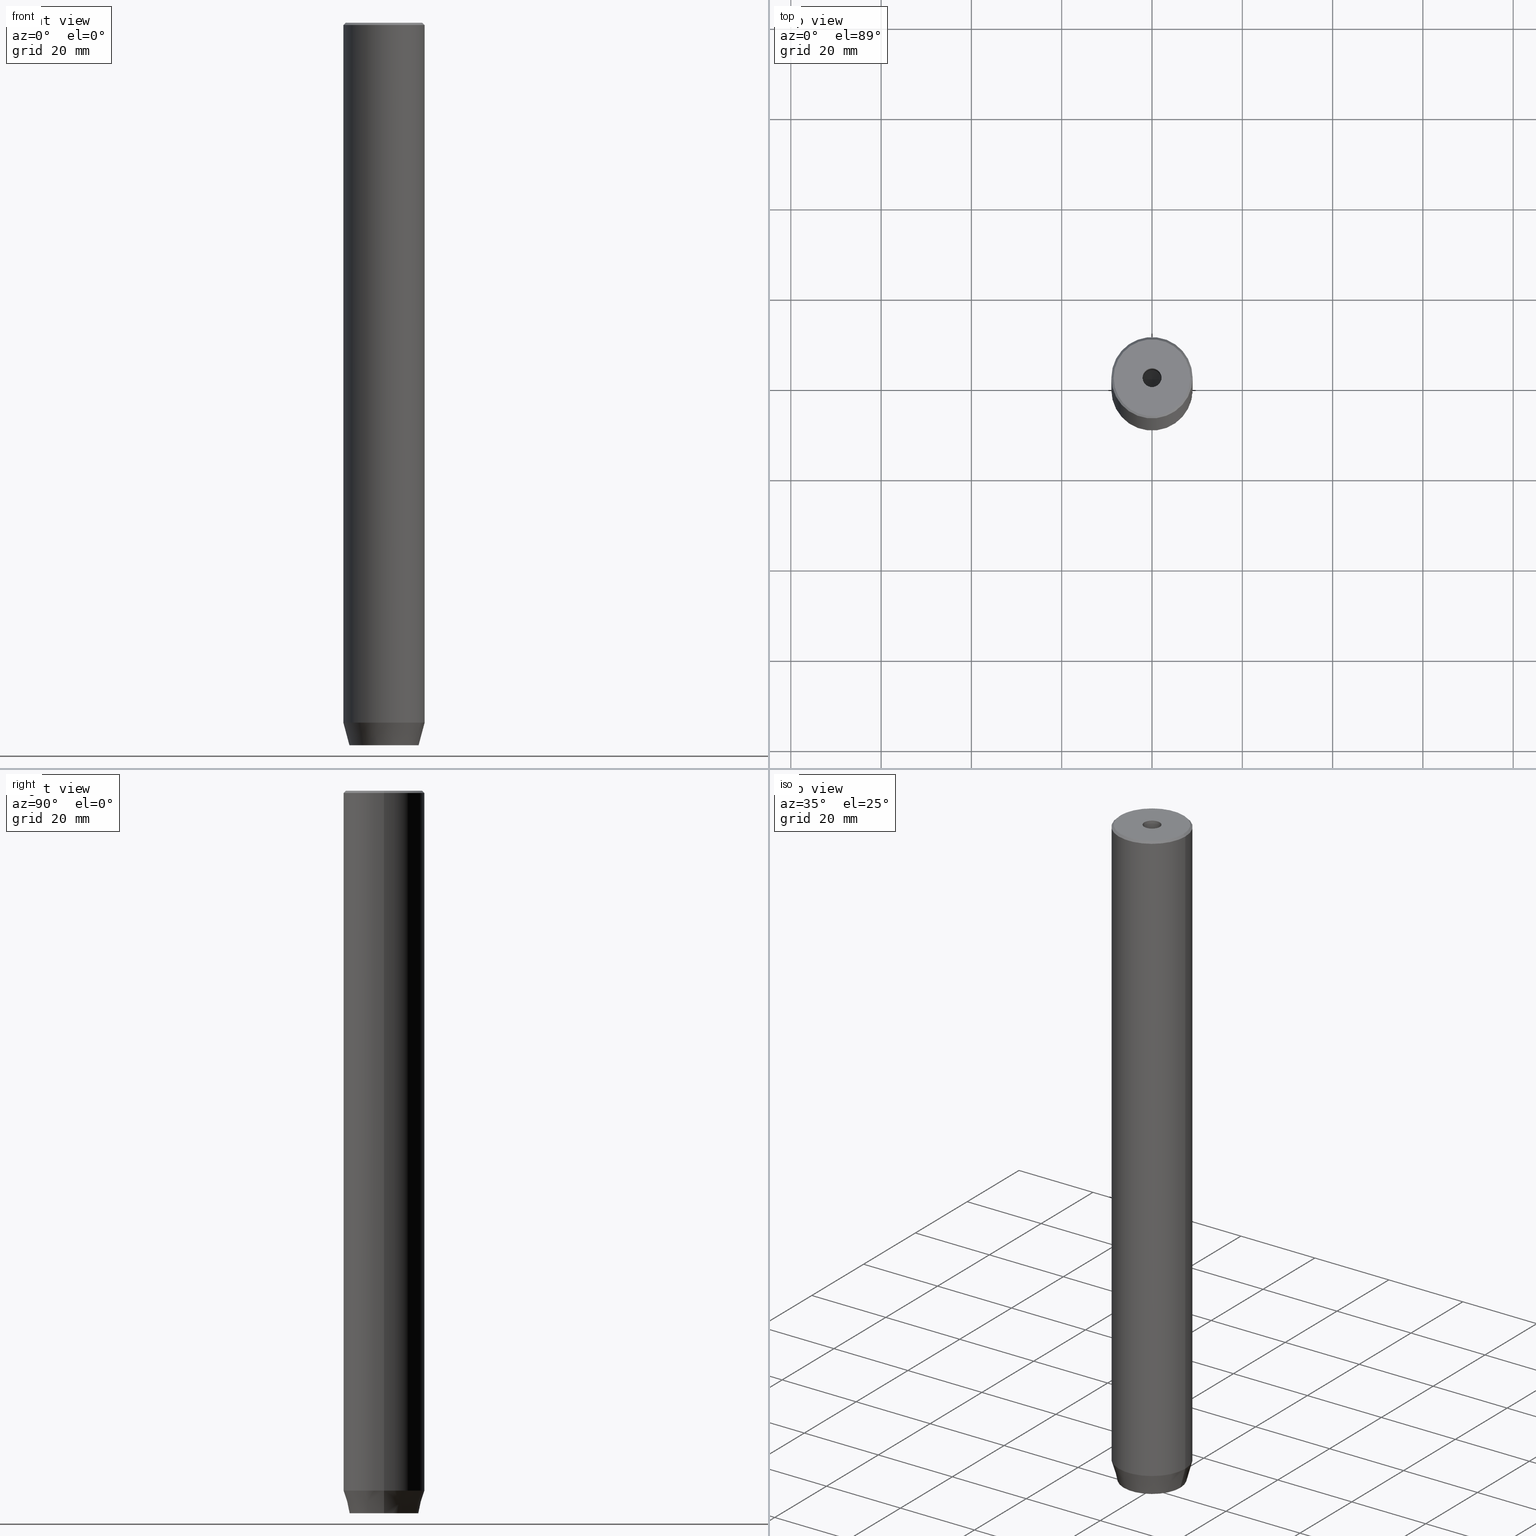
[diagram: canonical four-view strip — front | top / right | iso, engineering-drawing reading convention]
A machine part, canonical four-view strip (front | top / right | iso — engineering-drawing reading convention). The complete STEP part file that produces these views, byte-faithful:
ISO-10303-21;
HEADER;
FILE_DESCRIPTION (( 'STEP AP203' ),
    '1' );
FILE_NAME ('5ced.STEP',
    '2024-01-02T20:35:45',
    ( '' ),
    ( '' ),
    'SwSTEP 2.0',
    'SolidWorks 2019',
    '' );
FILE_SCHEMA (( 'CONFIG_CONTROL_DESIGN' ));
ENDSEC;

DATA;
#1 = APPLICATION_PROTOCOL_DEFINITION ( 'international standard', 'config_control_design', 1994, #15 ) ;
#2 = CARTESIAN_POINT ( 'NONE',  ( 9.000000000000000000, 0.000000000000000000, -0.5000000000000229816 ) ) ;
#3 = EDGE_CURVE ( 'NONE', #170, #261, #178, .T. ) ;
#4 = CARTESIAN_POINT ( 'NONE',  ( 9.000000000000000000, 0.000000000000000000, 0.000000000000000000 ) ) ;
#5 = LINE ( 'NONE', #549, #475 ) ;
#6 = EDGE_CURVE ( 'NONE', #40, #492, #132, .T. ) ;
#7 = AXIS2_PLACEMENT_3D ( 'NONE', #515, #420, #231 ) ;
#8 =( NAMED_UNIT ( * ) PLANE_ANGLE_UNIT ( ) SI_UNIT ( $, .RADIAN. ) );
#9 = DIRECTION ( 'NONE',  ( 1.000000000000000000, 0.000000000000000000, 0.000000000000000000 ) ) ;
#10 = VECTOR ( 'NONE', #315, 1000.000000000000000 ) ;
#11 = DATE_AND_TIME ( #560, #124 ) ;
#12 = AXIS2_PLACEMENT_3D ( 'NONE', #505, #93, #91 ) ;
#13 = DIRECTION ( 'NONE',  ( -0.000000000000000000, -0.000000000000000000, 1.000000000000000000 ) ) ;
#14 = EDGE_CURVE ( 'NONE', #401, #399, #453, .T. ) ;
#15 = APPLICATION_CONTEXT ( 'configuration controlled 3d designs of mechanical parts and assemblies' ) ;
#16 = CALENDAR_DATE ( 2024, 2, 1 ) ;
#17 = ADVANCED_BREP_SHAPE_REPRESENTATION ( '5ced', ( #72, #12 ), #418 ) ;
#18 = DIRECTION ( 'NONE',  ( 1.000000000000000000, 0.000000000000000000, 0.000000000000000000 ) ) ;
#19 = EDGE_CURVE ( 'NONE', #66, #110, #54, .T. ) ;
#20 = ORIENTED_EDGE ( 'NONE', *, *, #458, .T. ) ;
#21 = DIRECTION ( 'NONE',  ( -0.8660254037844385966, 0.5000000000000001110, 0.000000000000000000 ) ) ;
#22 = VECTOR ( 'NONE', #423, 1000.000000000000000 ) ;
#23 = ORIENTED_EDGE ( 'NONE', *, *, #504, .F. ) ;
#24 = AXIS2_PLACEMENT_3D ( 'NONE', #84, #361, #31 ) ;
#25 = CARTESIAN_POINT ( 'NONE',  ( -9.000000000000000000, 1.102182119232617714E-15, -154.9999999999999716 ) ) ;
#26 = ORIENTED_EDGE ( 'NONE', *, *, #583, .F. ) ;
#27 = EDGE_CURVE ( 'NONE', #77, #346, #327, .T. ) ;
#28 = CALENDAR_DATE ( 2024, 2, 1 ) ;
#29 = DIRECTION ( 'NONE',  ( 0.000000000000000000, -0.000000000000000000, 1.000000000000000000 ) ) ;
#30 = VERTEX_POINT ( 'NONE', #149 ) ;
#31 = DIRECTION ( 'NONE',  ( 1.000000000000000000, 0.000000000000000000, 0.000000000000000000 ) ) ;
#32 = ORIENTED_EDGE ( 'NONE', *, *, #519, .F. ) ;
#33 = CIRCLE ( 'NONE', #529, 2.099999999999996092 ) ;
#34 = DIRECTION ( 'NONE',  ( -0.000000000000000000, -0.000000000000000000, 1.000000000000000000 ) ) ;
#35 = EDGE_CURVE ( 'NONE', #212, #77, #193, .T. ) ;
#36 = VERTEX_POINT ( 'NONE', #187 ) ;
#37 = CARTESIAN_POINT ( 'NONE',  ( 0.000000000000000000, 0.000000000000000000, -0.5000000000000229816 ) ) ;
#38 = EDGE_LOOP ( 'NONE', ( #436, #554, #448 ) ) ;
#39 = CYLINDRICAL_SURFACE ( 'NONE', #348, 2.099999999999997424 ) ;
#40 = VERTEX_POINT ( 'NONE', #106 ) ;
#41 = EDGE_CURVE ( 'NONE', #577, #163, #454, .T. ) ;
#42 = DIRECTION ( 'NONE',  ( -1.000000000000000000, 0.000000000000000000, -0.000000000000000000 ) ) ;
#43 = CONICAL_SURFACE ( 'NONE', #397, 8.499999999999966249, 0.7853981633974587151 ) ;
#44 = CARTESIAN_POINT ( 'NONE',  ( -3.000000000000000888, 1.732050807568876527, -157.2000000000000171 ) ) ;
#45 = DIRECTION ( 'NONE',  ( 1.000000000000000000, 0.000000000000000000, 0.000000000000000000 ) ) ;
#46 = DIRECTION ( 'NONE',  ( 1.000000000000000000, 0.000000000000000000, 0.000000000000000000 ) ) ;
#47 = MECHANICAL_CONTEXT ( 'NONE', #444, 'mechanical' ) ;
#48 = DIRECTION ( 'NONE',  ( -0.000000000000000000, -0.000000000000000000, 1.000000000000000000 ) ) ;
#49 = CARTESIAN_POINT ( 'NONE',  ( -7.660254037844373087, 1.020146339021393680E-15, -160.0000000000000000 ) ) ;
#50 = CARTESIAN_POINT ( 'NONE',  ( 0.000000000000000000, 0.000000000000000000, -154.9999999999999716 ) ) ;
#51 = AXIS2_PLACEMENT_3D ( 'NONE', #55, #459, #545 ) ;
#52 = ADVANCED_FACE ( 'NONE', ( #238 ), #86, .T. ) ;
#53 = CARTESIAN_POINT ( 'NONE',  ( 2.099999999999996092, 0.000000000000000000, -20.00000000000000000 ) ) ;
#54 = LINE ( 'NONE', #331, #578 ) ;
#55 = CARTESIAN_POINT ( 'NONE',  ( 0.000000000000000000, 0.000000000000000000, -160.0000000000000000 ) ) ;
#56 = CARTESIAN_POINT ( 'NONE',  ( 0.000000000000000000, 0.000000000000000000, -1.990051048614449116E-16 ) ) ;
#57 = VECTOR ( 'NONE', #83, 1000.000000000000000 ) ;
#58 = FACE_OUTER_BOUND ( 'NONE', #216, .T. ) ;
#59 = VECTOR ( 'NONE', #567, 1000.000000000000000 ) ;
#60 = LINE ( 'NONE', #384, #179 ) ;
#61 = ORIENTED_EDGE ( 'NONE', *, *, #224, .T. ) ;
#62 = FACE_OUTER_BOUND ( 'NONE', #533, .T. ) ;
#63 = EDGE_LOOP ( 'NONE', ( #339, #121, #20, #429 ) ) ;
#64 = PERSON_AND_ORGANIZATION ( #285, #437 ) ;
#65 = CARTESIAN_POINT ( 'NONE',  ( 0.000000000000000000, 7.660254037844373087, -160.0000000000000000 ) ) ;
#66 = VERTEX_POINT ( 'NONE', #197 ) ;
#67 = ADVANCED_FACE ( 'NONE', ( #463 ), #367, .F. ) ;
#68 = AXIS2_PLACEMENT_3D ( 'NONE', #260, #573, #175 ) ;
#69 = PERSON_AND_ORGANIZATION_ROLE ( 'design_supplier' ) ;
#70 = DIRECTION ( 'NONE',  ( -0.000000000000000000, -0.000000000000000000, 1.000000000000000000 ) ) ;
#71 = VERTEX_POINT ( 'NONE', #291 ) ;
#72 = MANIFOLD_SOLID_BREP ( 'Vrt�k z�vitn�ku pro M5 z�vit1', #251 ) ;
#73 = DIRECTION ( 'NONE',  ( 1.000000000000000000, 0.000000000000000000, 0.000000000000000000 ) ) ;
#74 = ORIENTED_EDGE ( 'NONE', *, *, #275, .T. ) ;
#75 = EDGE_CURVE ( 'NONE', #66, #117, #5, .T. ) ;
#76 = DIRECTION ( 'NONE',  ( -0.000000000000000000, -0.000000000000000000, 1.000000000000000000 ) ) ;
#77 = VERTEX_POINT ( 'NONE', #412 ) ;
#78 = VECTOR ( 'NONE', #143, 1000.000000000000000 ) ;
#79 = DIRECTION ( 'NONE',  ( 0.000000000000000000, 0.000000000000000000, -1.000000000000000000 ) ) ;
#80 = ORIENTED_EDGE ( 'NONE', *, *, #180, .T. ) ;
#81 = SECURITY_CLASSIFICATION ( '', '', #114 ) ;
#82 = LINE ( 'NONE', #268, #89 ) ;
#83 = DIRECTION ( 'NONE',  ( 0.000000000000000000, -1.000000000000000000, 0.000000000000000000 ) ) ;
#84 = CARTESIAN_POINT ( 'NONE',  ( 0.000000000000000000, 0.000000000000000000, 0.000000000000000000 ) ) ;
#85 = ORIENTED_EDGE ( 'NONE', *, *, #292, .T. ) ;
#86 = CONICAL_SURFACE ( 'NONE', #508, 9.000000000000000000, 0.2617993877991501295 ) ;
#87 = CIRCLE ( 'NONE', #425, 9.000000000000000000 ) ;
#88 = LINE ( 'NONE', #468, #338 ) ;
#89 = VECTOR ( 'NONE', #408, 1000.000000000000000 ) ;
#90 = ORIENTED_EDGE ( 'NONE', *, *, #504, .T. ) ;
#91 = DIRECTION ( 'NONE',  ( 1.000000000000000000, 0.000000000000000000, 0.000000000000000000 ) ) ;
#92 = CARTESIAN_POINT ( 'NONE',  ( 0.000000000000000000, 0.000000000000000000, -154.9999999999999716 ) ) ;
#93 = DIRECTION ( 'NONE',  ( 0.000000000000000000, 0.000000000000000000, 1.000000000000000000 ) ) ;
#94 = EDGE_CURVE ( 'NONE', #163, #128, #95, .T. ) ;
#95 = LINE ( 'NONE', #512, #194 ) ;
#96 = AXIS2_PLACEMENT_3D ( 'NONE', #506, #242, #46 ) ;
#97 = CARTESIAN_POINT ( 'NONE',  ( 9.000000000000000000, 0.000000000000000000, -154.9999999999999716 ) ) ;
#98 = CC_DESIGN_PERSON_AND_ORGANIZATION_ASSIGNMENT ( #514, #69, ( #449 ) ) ;
#99 = PLANE ( 'NONE',  #503 ) ;
#100 = CONICAL_SURFACE ( 'NONE', #150, 2.099999999999996092, 1.029744258676652091 ) ;
#101 = CYLINDRICAL_SURFACE ( 'NONE', #439, 9.000000000000000000 ) ;
#102 = DIRECTION ( 'NONE',  ( -0.000000000000000000, -0.000000000000000000, 1.000000000000000000 ) ) ;
#103 = VECTOR ( 'NONE', #461, 1000.000000000000000 ) ;
#104 = EDGE_CURVE ( 'NONE', #163, #577, #424, .T. ) ;
#105 = COORDINATED_UNIVERSAL_TIME_OFFSET ( 1, 0, .AHEAD. ) ;
#106 = CARTESIAN_POINT ( 'NONE',  ( 3.000000000000000000, 1.732050807568876527, -157.2000000000000171 ) ) ;
#107 = CC_DESIGN_PERSON_AND_ORGANIZATION_ASSIGNMENT ( #564, #343, ( #120 ) ) ;
#108 = APPROVAL_STATUS ( 'not_yet_approved' ) ;
#109 = FACE_OUTER_BOUND ( 'NONE', #297, .T. ) ;
#110 = VERTEX_POINT ( 'NONE', #543 ) ;
#111 = CARTESIAN_POINT ( 'NONE',  ( -1.499999999999999556, 2.598076211353316012, -160.0000000000000000 ) ) ;
#112 = VECTOR ( 'NONE', #501, 1000.000000000000000 ) ;
#113 = ORIENTED_EDGE ( 'NONE', *, *, #527, .F. ) ;
#114 = SECURITY_CLASSIFICATION_LEVEL ( 'unclassified' ) ;
#115 = DIRECTION ( 'NONE',  ( 0.7071067811865549002, 8.659560562355022838E-17, -0.7071067811865401342 ) ) ;
#116 = ADVANCED_FACE ( 'NONE', ( #233 ), #288, .F. ) ;
#117 = VERTEX_POINT ( 'NONE', #469 ) ;
#118 = APPROVAL_ROLE ( '' ) ;
#119 = DIRECTION ( 'NONE',  ( -1.000000000000000000, 0.000000000000000000, 0.000000000000000000 ) ) ;
#120 = PRODUCT_DEFINITION ( 'NEZN�M�', '', #449, #378 ) ;
#121 = ORIENTED_EDGE ( 'NONE', *, *, #240, .T. ) ;
#122 = VECTOR ( 'NONE', #387, 1000.000000000000000 ) ;
#123 = CARTESIAN_POINT ( 'NONE',  ( -2.099999999999997424, 2.571758278209438506E-16, 0.000000000000000000 ) ) ;
#124 = LOCAL_TIME ( 21, 35, 45.00000000000000000, #199 ) ;
#125 = VERTEX_POINT ( 'NONE', #321 ) ;
#126 = ADVANCED_FACE ( 'NONE', ( #280 ), #507, .T. ) ;
#127 = DIRECTION ( 'NONE',  ( 1.000000000000000000, 0.000000000000000000, 0.000000000000000000 ) ) ;
#128 = VERTEX_POINT ( 'NONE', #546 ) ;
#129 = CARTESIAN_POINT ( 'NONE',  ( 3.000000000000000000, 1.732050807568876527, -160.0000000000000000 ) ) ;
#130 = VERTEX_POINT ( 'NONE', #144 ) ;
#131 = FACE_OUTER_BOUND ( 'NONE', #226, .T. ) ;
#132 = LINE ( 'NONE', #498, #57 ) ;
#133 = CARTESIAN_POINT ( 'NONE',  ( 3.000000000000000000, 0.000000000000000000, -160.0000000000000000 ) ) ;
#134 = ADVANCED_FACE ( 'NONE', ( #323 ), #406, .T. ) ;
#135 = EDGE_LOOP ( 'NONE', ( #376, #528, #405, #470 ) ) ;
#136 = VERTEX_POINT ( 'NONE', #2 ) ;
#137 = PRODUCT_RELATED_PRODUCT_CATEGORY ( 'detail', '', ( #195 ) ) ;
#138 = AXIS2_PLACEMENT_3D ( 'NONE', #553, #29, #526 ) ;
#139 = APPLICATION_PROTOCOL_DEFINITION ( 'international standard', 'config_control_design', 1994, #444 ) ;
#140 = DIRECTION ( 'NONE',  ( 0.5000000000000001110, 0.8660254037844385966, -0.000000000000000000 ) ) ;
#141 = CC_DESIGN_APPROVAL ( #278, ( #120 ) ) ;
#142 = ADVANCED_FACE ( 'NONE', ( #191 ), #99, .F. ) ;
#143 = DIRECTION ( 'NONE',  ( -0.000000000000000000, -0.000000000000000000, -1.000000000000000000 ) ) ;
#144 = CARTESIAN_POINT ( 'NONE',  ( -3.000000000000000000, -1.732050807568877859, -160.0000000000000000 ) ) ;
#145 = FACE_OUTER_BOUND ( 'NONE', #135, .T. ) ;
#146 = DIRECTION ( 'NONE',  ( -0.4999999999999999445, 0.8660254037844387076, 0.000000000000000000 ) ) ;
#147 = VERTEX_POINT ( 'NONE', #510 ) ;
#148 =( NAMED_UNIT ( * ) SI_UNIT ( $, .STERADIAN. ) SOLID_ANGLE_UNIT ( ) );
#149 = CARTESIAN_POINT ( 'NONE',  ( 8.499999999999966249, 1.071565949253931955E-15, 0.000000000000000000 ) ) ;
#150 = AXIS2_PLACEMENT_3D ( 'NONE', #476, #13, #18 ) ;
#151 = LOCAL_TIME ( 21, 35, 45.00000000000000000, #155 ) ;
#152 = DIRECTION ( 'NONE',  ( -0.000000000000000000, -0.000000000000000000, -1.000000000000000000 ) ) ;
#153 = CARTESIAN_POINT ( 'NONE',  ( -2.099999999999996092, 2.571758278209436534E-16, -20.00000000000000000 ) ) ;
#154 = ORIENTED_EDGE ( 'NONE', *, *, #266, .F. ) ;
#155 = COORDINATED_UNIVERSAL_TIME_OFFSET ( 1, 0, .AHEAD. ) ;
#156 = CARTESIAN_POINT ( 'NONE',  ( 3.000000000000000000, 1.732050807568876527, -157.2000000000000171 ) ) ;
#157 = AXIS2_PLACEMENT_3D ( 'NONE', #413, #140, #552 ) ;
#158 = ORIENTED_EDGE ( 'NONE', *, *, #14, .F. ) ;
#159 = ADVANCED_FACE ( 'NONE', ( #286, #482 ), #523, .T. ) ;
#160 = APPROVAL_ROLE ( '' ) ;
#161 = APPROVAL_PERSON_ORGANIZATION ( #547, #278, #160 ) ;
#162 = LINE ( 'NONE', #341, #245 ) ;
#163 = VERTEX_POINT ( 'NONE', #427 ) ;
#164 = DATE_AND_TIME ( #252, #210 ) ;
#165 = FACE_OUTER_BOUND ( 'NONE', #38, .T. ) ;
#166 = EDGE_LOOP ( 'NONE', ( #537, #203, #173, #250 ) ) ;
#167 = AXIS2_PLACEMENT_3D ( 'NONE', #92, #48, #380 ) ;
#168 = LINE ( 'NONE', #381, #171 ) ;
#169 = EDGE_CURVE ( 'NONE', #261, #401, #211, .T. ) ;
#170 = VERTEX_POINT ( 'NONE', #474 ) ;
#171 = VECTOR ( 'NONE', #344, 999.9999999999998863 ) ;
#172 = LINE ( 'NONE', #532, #10 ) ;
#173 = ORIENTED_EDGE ( 'NONE', *, *, #35, .T. ) ;
#174 = CC_DESIGN_PERSON_AND_ORGANIZATION_ASSIGNMENT ( #464, #416, ( #195 ) ) ;
#175 = DIRECTION ( 'NONE',  ( 1.000000000000000000, 0.000000000000000000, 0.000000000000000000 ) ) ;
#176 = ORIENTED_EDGE ( 'NONE', *, *, #325, .T. ) ;
#177 = DIRECTION ( 'NONE',  ( 0.000000000000000000, 0.000000000000000000, -1.000000000000000000 ) ) ;
#178 = LINE ( 'NONE', #44, #568 ) ;
#179 = VECTOR ( 'NONE', #21, 1000.000000000000000 ) ;
#180 = EDGE_CURVE ( 'NONE', #117, #170, #391, .T. ) ;
#181 = DIRECTION ( 'NONE',  ( 1.000000000000000000, 0.000000000000000000, 0.000000000000000000 ) ) ;
#182 = EDGE_LOOP ( 'NONE', ( #272, #383, #490, #410 ) ) ;
#183 = CC_DESIGN_SECURITY_CLASSIFICATION ( #81, ( #449 ) ) ;
#184 = LINE ( 'NONE', #396, #550 ) ;
#185 = CC_DESIGN_DATE_AND_TIME_ASSIGNMENT ( #481, #485, ( #81 ) ) ;
#186 = EDGE_LOOP ( 'NONE', ( #23, #263 ) ) ;
#187 = CARTESIAN_POINT ( 'NONE',  ( -8.499999999999966249, 0.000000000000000000, 0.000000000000000000 ) ) ;
#188 = ADVANCED_FACE ( 'NONE', ( #62 ), #100, .F. ) ;
#189 = CIRCLE ( 'NONE', #24, 8.499999999999966249 ) ;
#190 = DIRECTION ( 'NONE',  ( -0.000000000000000000, -0.000000000000000000, 1.000000000000000000 ) ) ;
#191 = FACE_OUTER_BOUND ( 'NONE', #269, .T. ) ;
#192 = CARTESIAN_POINT ( 'NONE',  ( 1.500000000000000222, -2.598076211353315568, -157.2000000000000171 ) ) ;
#193 = LINE ( 'NONE', #586, #358 ) ;
#194 = VECTOR ( 'NONE', #102, 1000.000000000000000 ) ;
#195 = PRODUCT ( '5ced', '5ced', '', ( #47 ) ) ;
#196 = PLANE ( 'NONE',  #363 ) ;
#197 = CARTESIAN_POINT ( 'NONE',  ( -2.168404344971008868E-16, -3.464101615137754830, -157.2000000000000171 ) ) ;
#198 = AXIS2_PLACEMENT_3D ( 'NONE', #582, #76, #262 ) ;
#199 = COORDINATED_UNIVERSAL_TIME_OFFSET ( 1, 0, .AHEAD. ) ;
#200 = FACE_OUTER_BOUND ( 'NONE', #531, .T. ) ;
#201 = PERSON_AND_ORGANIZATION_ROLE ( 'classification_officer' ) ;
#202 = CARTESIAN_POINT ( 'NONE',  ( 0.000000000000000000, 0.000000000000000000, 0.000000000000000000 ) ) ;
#203 = ORIENTED_EDGE ( 'NONE', *, *, #345, .F. ) ;
#204 = EDGE_CURVE ( 'NONE', #451, #40, #486, .T. ) ;
#205 = CARTESIAN_POINT ( 'NONE',  ( 9.000000000000000000, 0.000000000000000000, -154.9999999999999716 ) ) ;
#206 = AXIS2_PLACEMENT_3D ( 'NONE', #587, #190, #369 ) ;
#207 = ORIENTED_EDGE ( 'NONE', *, *, #169, .T. ) ;
#208 = ADVANCED_FACE ( 'NONE', ( #109 ), #43, .T. ) ;
#209 = PERSON_AND_ORGANIZATION ( #285, #437 ) ;
#210 = LOCAL_TIME ( 21, 35, 45.00000000000000000, #105 ) ;
#211 = LINE ( 'NONE', #111, #467 ) ;
#212 = VERTEX_POINT ( 'NONE', #249 ) ;
#213 = APPROVAL_DATE_TIME ( #333, #312 ) ;
#214 = ADVANCED_FACE ( 'NONE', ( #165 ), #310, .F. ) ;
#215 = DIRECTION ( 'NONE',  ( 0.8660254037844385966, -0.5000000000000001110, 0.000000000000000000 ) ) ;
#216 = EDGE_LOOP ( 'NONE', ( #581, #32, #524, #542 ) ) ;
#217 = FACE_OUTER_BOUND ( 'NONE', #267, .T. ) ;
#218 = EDGE_LOOP ( 'NONE', ( #90, #176, #305, #495 ) ) ;
#219 = VECTOR ( 'NONE', #70, 1000.000000000000000 ) ;
#220 = LINE ( 'NONE', #536, #518 ) ;
#221 = ORIENTED_EDGE ( 'NONE', *, *, #488, .T. ) ;
#222 = DIRECTION ( 'NONE',  ( 0.000000000000000000, 0.000000000000000000, -1.000000000000000000 ) ) ;
#223 = ORIENTED_EDGE ( 'NONE', *, *, #462, .T. ) ;
#224 = EDGE_CURVE ( 'NONE', #170, #451, #168, .T. ) ;
#225 = DIRECTION ( 'NONE',  ( 0.8660254037844385966, 0.5000000000000001110, 0.000000000000000000 ) ) ;
#226 = EDGE_LOOP ( 'NONE', ( #239, #362, #456, #460 ) ) ;
#227 = AXIS2_PLACEMENT_3D ( 'NONE', #565, #428, #294 ) ;
#228 = DIRECTION ( 'NONE',  ( 1.000000000000000000, 0.000000000000000000, 0.000000000000000000 ) ) ;
#229 = CARTESIAN_POINT ( 'NONE',  ( 1.500000000000000222, 2.598076211353315568, -160.0000000000000000 ) ) ;
#230 = ADVANCED_FACE ( 'NONE', ( #253, #200 ), #347, .T. ) ;
#231 = DIRECTION ( 'NONE',  ( -0.000000000000000000, 0.000000000000000000, -1.000000000000000000 ) ) ;
#232 = CARTESIAN_POINT ( 'NONE',  ( 0.000000000000000000, 0.000000000000000000, 0.000000000000000000 ) ) ;
#233 = FACE_OUTER_BOUND ( 'NONE', #441, .T. ) ;
#234 = AXIS2_PLACEMENT_3D ( 'NONE', #404, #496, #228 ) ;
#235 = DIRECTION ( 'NONE',  ( -0.000000000000000000, -0.000000000000000000, 1.000000000000000000 ) ) ;
#236 = DIRECTION ( 'NONE',  ( -0.000000000000000000, -0.000000000000000000, 1.000000000000000000 ) ) ;
#237 =( LENGTH_UNIT ( ) NAMED_UNIT ( * ) SI_UNIT ( .MILLI., .METRE. ) );
#238 = FACE_OUTER_BOUND ( 'NONE', #342, .T. ) ;
#239 = ORIENTED_EDGE ( 'NONE', *, *, #527, .T. ) ;
#240 = EDGE_CURVE ( 'NONE', #259, #346, #435, .T. ) ;
#241 = LINE ( 'NONE', #374, #78 ) ;
#242 = DIRECTION ( 'NONE',  ( -0.000000000000000000, -0.000000000000000000, 1.000000000000000000 ) ) ;
#243 = CC_DESIGN_PERSON_AND_ORGANIZATION_ASSIGNMENT ( #209, #201, ( #81 ) ) ;
#244 = APPROVAL_STATUS ( 'not_yet_approved' ) ;
#245 = VECTOR ( 'NONE', #115, 1000.000000000000000 ) ;
#246 = CARTESIAN_POINT ( 'NONE',  ( -3.000000000000000888, 1.732050807568876527, -160.0000000000000000 ) ) ;
#247 = DIRECTION ( 'NONE',  ( 0.000000000000000000, 0.000000000000000000, -1.000000000000000000 ) ) ;
#248 = ORIENTED_EDGE ( 'NONE', *, *, #14, .T. ) ;
#249 = CARTESIAN_POINT ( 'NONE',  ( 2.099999999999996092, 0.000000000000000000, -20.00000000000000000 ) ) ;
#250 = ORIENTED_EDGE ( 'NONE', *, *, #27, .T. ) ;
#251 = CLOSED_SHELL ( 'NONE', ( #407, #188, #208, #134, #126, #159, #230, #575, #52, #256, #142, #555, #382, #432, #67, #116, #422, #214, #471 ) ) ;
#252 = CALENDAR_DATE ( 2024, 2, 1 ) ;
#253 = FACE_BOUND ( 'NONE', #562, .T. ) ;
#254 = VECTOR ( 'NONE', #235, 1000.000000000000000 ) ;
#255 = ORIENTED_EDGE ( 'NONE', *, *, #390, .F. ) ;
#256 = ADVANCED_FACE ( 'NONE', ( #58 ), #377, .T. ) ;
#257 = APPROVAL_DATE_TIME ( #164, #278 ) ;
#258 = CARTESIAN_POINT ( 'NONE',  ( 1.500000000000000222, 2.598076211353315568, -157.2000000000000171 ) ) ;
#259 = VERTEX_POINT ( 'NONE', #153 ) ;
#260 = CARTESIAN_POINT ( 'NONE',  ( 0.000000000000000000, 0.000000000000000000, 0.000000000000000000 ) ) ;
#261 = VERTEX_POINT ( 'NONE', #246 ) ;
#262 = DIRECTION ( 'NONE',  ( 1.000000000000000000, 0.000000000000000000, 0.000000000000000000 ) ) ;
#263 = ORIENTED_EDGE ( 'NONE', *, *, #289, .F. ) ;
#264 = AXIS2_PLACEMENT_3D ( 'NONE', #491, #450, #225 ) ;
#265 = CYLINDRICAL_SURFACE ( 'NONE', #68, 2.099999999999997424 ) ;
#266 = EDGE_CURVE ( 'NONE', #110, #130, #60, .T. ) ;
#267 = EDGE_LOOP ( 'NONE', ( #443, #26, #395, #584 ) ) ;
#268 = CARTESIAN_POINT ( 'NONE',  ( -3.000000000000000444, -7.511572993685800087E-16, -160.0000000000000000 ) ) ;
#269 = EDGE_LOOP ( 'NONE', ( #207, #574, #484, #421 ) ) ;
#270 = CC_DESIGN_PERSON_AND_ORGANIZATION_ASSIGNMENT ( #433, #525, ( #449 ) ) ;
#271 = DIRECTION ( 'NONE',  ( -0.000000000000000000, -0.000000000000000000, -1.000000000000000000 ) ) ;
#272 = ORIENTED_EDGE ( 'NONE', *, *, #393, .T. ) ;
#273 = PRODUCT_DEFINITION_SHAPE ( 'NONE', 'NONE',  #120 ) ;
#274 = VECTOR ( 'NONE', #446, 1000.000000000000000 ) ;
#275 = EDGE_CURVE ( 'NONE', #125, #577, #557, .T. ) ;
#276 = DIRECTION ( 'NONE',  ( -0.8660254037844385966, -0.5000000000000001110, 0.000000000000000000 ) ) ;
#277 = ORIENTED_EDGE ( 'NONE', *, *, #462, .F. ) ;
#278 = APPROVAL ( #244, 'NEUR�EN�' ) ;
#279 = CARTESIAN_POINT ( 'NONE',  ( 0.000000000000000000, 0.000000000000000000, 0.000000000000000000 ) ) ;
#280 = FACE_OUTER_BOUND ( 'NONE', #535, .T. ) ;
#281 = DIRECTION ( 'NONE',  ( 1.000000000000000000, 0.000000000000000000, 0.000000000000000000 ) ) ;
#282 = CARTESIAN_POINT ( 'NONE',  ( 0.000000000000000000, 0.000000000000000000, -154.9999999999999716 ) ) ;
#283 = VECTOR ( 'NONE', #334, 1000.000000000000000 ) ;
#284 = LINE ( 'NONE', #419, #103 ) ;
#285 = PERSON ( 'NEUR�EN�', 'NEUR�EN�', 'NEUR�EN�', ('NEUR�EN�'), ('NEUR�EN�'), ('NEUR�EN�') ) ;
#286 = FACE_BOUND ( 'NONE', #569, .T. ) ;
#287 = EDGE_CURVE ( 'NONE', #40, #399, #530, .T. ) ;
#288 = PLANE ( 'NONE',  #157 ) ;
#289 = EDGE_CURVE ( 'NONE', #517, #125, #293, .T. ) ;
#290 = APPROVAL_STATUS ( 'not_yet_approved' ) ;
#291 = CARTESIAN_POINT ( 'NONE',  ( 3.000000000000000000, -1.732050807568876527, -160.0000000000000000 ) ) ;
#292 = EDGE_CURVE ( 'NONE', #30, #136, #162, .T. ) ;
#293 = CIRCLE ( 'NONE', #447, 7.660254037844373087 ) ;
#294 = DIRECTION ( 'NONE',  ( 1.000000000000000000, 0.000000000000000000, 0.000000000000000000 ) ) ;
#295 = ORIENTED_EDGE ( 'NONE', *, *, #75, .T. ) ;
#296 = DIRECTION ( 'NONE',  ( 0.000000000000000000, 0.000000000000000000, -1.000000000000000000 ) ) ;
#297 = EDGE_LOOP ( 'NONE', ( #502, #85, #277, #303 ) ) ;
#298 = COORDINATED_UNIVERSAL_TIME_OFFSET ( 1, 0, .AHEAD. ) ;
#299 = LINE ( 'NONE', #25, #494 ) ;
#300 = ORIENTED_EDGE ( 'NONE', *, *, #393, .F. ) ;
#301 = CALENDAR_DATE ( 2024, 2, 1 ) ;
#302 = DIRECTION ( 'NONE',  ( 1.000000000000000000, 0.000000000000000000, 0.000000000000000000 ) ) ;
#303 = ORIENTED_EDGE ( 'NONE', *, *, #349, .F. ) ;
#304 = CARTESIAN_POINT ( 'NONE',  ( 0.000000000000000000, 0.000000000000000000, 0.000000000000000000 ) ) ;
#305 = ORIENTED_EDGE ( 'NONE', *, *, #41, .F. ) ;
#306 = FACE_OUTER_BOUND ( 'NONE', #354, .T. ) ;
#307 = ORIENTED_EDGE ( 'NONE', *, *, #398, .T. ) ;
#308 = CARTESIAN_POINT ( 'NONE',  ( 0.000000000000000000, 0.000000000000000000, -157.2000000000000171 ) ) ;
#309 = ORIENTED_EDGE ( 'NONE', *, *, #104, .F. ) ;
#310 = CONICAL_SURFACE ( 'NONE', #227, 2.099999999999996092, 1.029744258676652091 ) ;
#311 = CARTESIAN_POINT ( 'NONE',  ( -1.084202172485504434E-16, 3.464101615137754830, -157.2000000000000171 ) ) ;
#312 = APPROVAL ( #290, 'NEUR�EN�' ) ;
#313 = APPROVAL_PERSON_ORGANIZATION ( #64, #312, #473 ) ;
#314 = ORIENTED_EDGE ( 'NONE', *, *, #371, .T. ) ;
#315 = DIRECTION ( 'NONE',  ( -0.8571673007021111124, 1.049727191138617217E-16, 0.5150380749100562650 ) ) ;
#316 = ORIENTED_EDGE ( 'NONE', *, *, #519, .T. ) ;
#317 = DIRECTION ( 'NONE',  ( -0.000000000000000000, -0.000000000000000000, 1.000000000000000000 ) ) ;
#318 = ORIENTED_EDGE ( 'NONE', *, *, #539, .F. ) ;
#319 = APPROVAL ( #108, 'NEUR�EN�' ) ;
#320 = VECTOR ( 'NONE', #276, 1000.000000000000000 ) ;
#321 = CARTESIAN_POINT ( 'NONE',  ( 7.660254037844373087, 0.000000000000000000, -160.0000000000000000 ) ) ;
#322 = DIRECTION ( 'NONE',  ( 2.503857664561933362E-16, -1.000000000000000000, 0.000000000000000000 ) ) ;
#323 = FACE_OUTER_BOUND ( 'NONE', #218, .T. ) ;
#324 = LINE ( 'NONE', #192, #320 ) ;
#325 = EDGE_CURVE ( 'NONE', #517, #163, #299, .T. ) ;
#326 = DIRECTION ( 'NONE',  ( -0.8660254037844387076, -0.4999999999999999445, 0.000000000000000000 ) ) ;
#327 = CIRCLE ( 'NONE', #483, 2.099999999999998757 ) ;
#328 = AXIS2_PLACEMENT_3D ( 'NONE', #538, #541, #571 ) ;
#329 = FACE_OUTER_BOUND ( 'NONE', #388, .T. ) ;
#330 = DIRECTION ( 'NONE',  ( -0.000000000000000000, -0.000000000000000000, 1.000000000000000000 ) ) ;
#331 = CARTESIAN_POINT ( 'NONE',  ( -2.168404344971008868E-16, -3.464101615137754830, -157.2000000000000171 ) ) ;
#332 = ORIENTED_EDGE ( 'NONE', *, *, #94, .T. ) ;
#333 = DATE_AND_TIME ( #28, #389 ) ;
#334 = DIRECTION ( 'NONE',  ( 0.2588190451025214056, 0.000000000000000000, 0.9659258262890680902 ) ) ;
#335 = ORIENTED_EDGE ( 'NONE', *, *, #497, .T. ) ;
#336 = CIRCLE ( 'NONE', #51, 7.660254037844373087 ) ;
#337 = CARTESIAN_POINT ( 'NONE',  ( 0.000000000000000000, 0.000000000000000000, -160.0000000000000000 ) ) ;
#338 = VECTOR ( 'NONE', #372, 1000.000000000000000 ) ;
#339 = ORIENTED_EDGE ( 'NONE', *, *, #355, .F. ) ;
#340 = DATE_TIME_ROLE ( 'creation_date' ) ;
#341 = CARTESIAN_POINT ( 'NONE',  ( 8.499999999999966249, 1.040949779275245998E-15, 0.000000000000000000 ) ) ;
#342 = EDGE_LOOP ( 'NONE', ( #392, #385, #74, #309 ) ) ;
#343 = PERSON_AND_ORGANIZATION_ROLE ( 'creator' ) ;
#344 = DIRECTION ( 'NONE',  ( 0.8660254037844387076, 0.4999999999999999445, 0.000000000000000000 ) ) ;
#345 = EDGE_CURVE ( 'NONE', #212, #259, #457, .T. ) ;
#346 = VERTEX_POINT ( 'NONE', #442 ) ;
#347 = PLANE ( 'NONE',  #138 ) ;
#348 = AXIS2_PLACEMENT_3D ( 'NONE', #304, #34, #127 ) ;
#349 = EDGE_CURVE ( 'NONE', #36, #128, #184, .T. ) ;
#350 = CIRCLE ( 'NONE', #234, 2.099999999999998757 ) ;
#351 = ORIENTED_EDGE ( 'NONE', *, *, #458, .F. ) ;
#352 = CC_DESIGN_APPROVAL ( #319, ( #449 ) ) ;
#353 = FACE_OUTER_BOUND ( 'NONE', #166, .T. ) ;
#354 = EDGE_LOOP ( 'NONE', ( #61, #572, #365, #335, #295, #80 ) ) ;
#355 = EDGE_CURVE ( 'NONE', #259, #212, #33, .T. ) ;
#356 = CARTESIAN_POINT ( 'NONE',  ( 0.000000000000000000, 0.000000000000000000, -20.00000000000000000 ) ) ;
#357 = ORIENTED_EDGE ( 'NONE', *, *, #169, .F. ) ;
#358 = VECTOR ( 'NONE', #472, 1000.000000000000000 ) ;
#359 = FACE_OUTER_BOUND ( 'NONE', #63, .T. ) ;
#360 = DIRECTION ( 'NONE',  ( -0.000000000000000000, -0.000000000000000000, -1.000000000000000000 ) ) ;
#361 = DIRECTION ( 'NONE',  ( -0.000000000000000000, -0.000000000000000000, 1.000000000000000000 ) ) ;
#362 = ORIENTED_EDGE ( 'NONE', *, *, #19, .F. ) ;
#363 = AXIS2_PLACEMENT_3D ( 'NONE', #509, #379, #322 ) ;
#364 = DIRECTION ( 'NONE',  ( -0.7071067811865549002, 0.000000000000000000, -0.7071067811865401342 ) ) ;
#365 = ORIENTED_EDGE ( 'NONE', *, *, #6, .T. ) ;
#366 = DIRECTION ( 'NONE',  ( -0.000000000000000000, -0.000000000000000000, 1.000000000000000000 ) ) ;
#367 = PLANE ( 'NONE',  #7 ) ;
#368 = AXIS2_PLACEMENT_3D ( 'NONE', #308, #79, #42 ) ;
#369 = DIRECTION ( 'NONE',  ( 1.000000000000000000, 0.000000000000000000, 0.000000000000000000 ) ) ;
#370 = CC_DESIGN_APPROVAL ( #312, ( #81 ) ) ;
#371 = EDGE_CURVE ( 'NONE', #30, #36, #189, .T. ) ;
#372 = DIRECTION ( 'NONE',  ( -0.8660254037844385966, -0.5000000000000001110, 0.000000000000000000 ) ) ;
#373 = DIRECTION ( 'NONE',  ( -0.8660254037844385966, 0.5000000000000001110, 0.000000000000000000 ) ) ;
#374 = CARTESIAN_POINT ( 'NONE',  ( -1.084202172485504434E-16, 3.464101615137754830, -157.2000000000000171 ) ) ;
#375 = DIRECTION ( 'NONE',  ( 1.000000000000000000, 0.000000000000000000, 0.000000000000000000 ) ) ;
#376 = ORIENTED_EDGE ( 'NONE', *, *, #390, .T. ) ;
#377 = CONICAL_SURFACE ( 'NONE', #580, 8.499999999999966249, 0.7853981633974587151 ) ;
#378 = DESIGN_CONTEXT ( 'detailed design', #15, 'design' ) ;
#379 = DIRECTION ( 'NONE',  ( -1.000000000000000000, -2.503857664561933362E-16, 0.000000000000000000 ) ) ;
#380 = DIRECTION ( 'NONE',  ( 1.000000000000000000, 0.000000000000000000, 0.000000000000000000 ) ) ;
#381 = CARTESIAN_POINT ( 'NONE',  ( -1.499999999999999556, 2.598076211353316012, -157.2000000000000171 ) ) ;
#382 = ADVANCED_FACE ( 'NONE', ( #217 ), #534, .F. ) ;
#383 = ORIENTED_EDGE ( 'NONE', *, *, #414, .F. ) ;
#384 = CARTESIAN_POINT ( 'NONE',  ( -1.500000000000000666, -2.598076211353316456, -160.0000000000000000 ) ) ;
#385 = ORIENTED_EDGE ( 'NONE', *, *, #289, .T. ) ;
#386 = VECTOR ( 'NONE', #215, 1000.000000000000000 ) ;
#387 = DIRECTION ( 'NONE',  ( -0.000000000000000000, -0.000000000000000000, -1.000000000000000000 ) ) ;
#388 = EDGE_LOOP ( 'NONE', ( #403, #480, #221, #521 ) ) ;
#389 = LOCAL_TIME ( 21, 35, 45.00000000000000000, #298 ) ;
#390 = EDGE_CURVE ( 'NONE', #130, #261, #82, .T. ) ;
#391 = LINE ( 'NONE', #394, #59 ) ;
#392 = ORIENTED_EDGE ( 'NONE', *, *, #325, .F. ) ;
#393 = EDGE_CURVE ( 'NONE', #399, #71, #452, .T. ) ;
#394 = CARTESIAN_POINT ( 'NONE',  ( -3.000000000000000444, -7.511572993685800087E-16, -157.2000000000000171 ) ) ;
#395 = ORIENTED_EDGE ( 'NONE', *, *, #75, .F. ) ;
#396 = CARTESIAN_POINT ( 'NONE',  ( -8.499999999999966249, 0.000000000000000000, 0.000000000000000000 ) ) ;
#397 = AXIS2_PLACEMENT_3D ( 'NONE', #478, #296, #440 ) ;
#398 = EDGE_CURVE ( 'NONE', #147, #259, #172, .T. ) ;
#399 = VERTEX_POINT ( 'NONE', #129 ) ;
#400 = PLANE ( 'NONE',  #264 ) ;
#401 = VERTEX_POINT ( 'NONE', #493 ) ;
#402 = DIRECTION ( 'NONE',  ( 1.000000000000000000, 0.000000000000000000, 0.000000000000000000 ) ) ;
#403 = ORIENTED_EDGE ( 'NONE', *, *, #94, .F. ) ;
#404 = CARTESIAN_POINT ( 'NONE',  ( 0.000000000000000000, 0.000000000000000000, -1.990051048614449116E-16 ) ) ;
#405 = ORIENTED_EDGE ( 'NONE', *, *, #180, .F. ) ;
#406 = CONICAL_SURFACE ( 'NONE', #544, 9.000000000000000000, 0.2617993877991501295 ) ;
#407 = ADVANCED_FACE ( 'NONE', ( #359 ), #39, .F. ) ;
#408 = DIRECTION ( 'NONE',  ( -2.503857664561932376E-16, 1.000000000000000000, 0.000000000000000000 ) ) ;
#409 = LOCAL_TIME ( 21, 35, 45.00000000000000000, #426 ) ;
#410 = ORIENTED_EDGE ( 'NONE', *, *, #287, .T. ) ;
#411 = CARTESIAN_POINT ( 'NONE',  ( 3.000000000000000000, -1.732050807568876527, -157.2000000000000171 ) ) ;
#412 = CARTESIAN_POINT ( 'NONE',  ( 2.099999999999998757, 0.000000000000000000, -1.990051048614449116E-16 ) ) ;
#413 = CARTESIAN_POINT ( 'NONE',  ( 1.500000000000000222, 2.598076211353315568, -157.2000000000000171 ) ) ;
#414 = EDGE_CURVE ( 'NONE', #492, #71, #220, .T. ) ;
#415 = CIRCLE ( 'NONE', #559, 8.499999999999966249 ) ;
#416 = PERSON_AND_ORGANIZATION_ROLE ( 'design_owner' ) ;
#417 = DIRECTION ( 'NONE',  ( 1.000000000000000000, 0.000000000000000000, 0.000000000000000000 ) ) ;
#418 =( GEOMETRIC_REPRESENTATION_CONTEXT ( 3 ) GLOBAL_UNCERTAINTY_ASSIGNED_CONTEXT ( ( #445 ) ) GLOBAL_UNIT_ASSIGNED_CONTEXT ( ( #237, #8, #148 ) ) REPRESENTATION_CONTEXT ( 'NONE', 'WORKASPACE' ) );
#419 = CARTESIAN_POINT ( 'NONE',  ( -3.000000000000000000, -1.732050807568877859, -157.2000000000000171 ) ) ;
#420 = DIRECTION ( 'NONE',  ( 1.000000000000000000, 0.000000000000000000, -0.000000000000000000 ) ) ;
#421 = ORIENTED_EDGE ( 'NONE', *, *, #3, .T. ) ;
#422 = ADVANCED_FACE ( 'NONE', ( #306 ), #455, .T. ) ;
#423 = DIRECTION ( 'NONE',  ( 0.8660254037844385966, -0.5000000000000001110, 0.000000000000000000 ) ) ;
#424 = CIRCLE ( 'NONE', #167, 9.000000000000000000 ) ;
#425 = AXIS2_PLACEMENT_3D ( 'NONE', #489, #177, #73 ) ;
#426 = COORDINATED_UNIVERSAL_TIME_OFFSET ( 1, 0, .AHEAD. ) ;
#427 = CARTESIAN_POINT ( 'NONE',  ( -9.000000000000000000, 1.102182119232617714E-15, -154.9999999999999716 ) ) ;
#428 = DIRECTION ( 'NONE',  ( -0.000000000000000000, -0.000000000000000000, 1.000000000000000000 ) ) ;
#429 = ORIENTED_EDGE ( 'NONE', *, *, #35, .F. ) ;
#430 = DIRECTION ( 'NONE',  ( 0.000000000000000000, 0.000000000000000000, -1.000000000000000000 ) ) ;
#431 = ORIENTED_EDGE ( 'NONE', *, *, #513, .T. ) ;
#432 = ADVANCED_FACE ( 'NONE', ( #131 ), #400, .F. ) ;
#433 = PERSON_AND_ORGANIZATION ( #285, #437 ) ;
#434 = AXIS2_PLACEMENT_3D ( 'NONE', #65, #247, #520 ) ;
#435 = LINE ( 'NONE', #123, #219 ) ;
#436 = ORIENTED_EDGE ( 'NONE', *, *, #398, .F. ) ;
#437 = ORGANIZATION ( 'NEUR�EN�', 'NEUR�EN�', '' ) ;
#438 = APPROVAL_DATE_TIME ( #11, #319 ) ;
#439 = AXIS2_PLACEMENT_3D ( 'NONE', #232, #317, #45 ) ;
#440 = DIRECTION ( 'NONE',  ( -1.000000000000000000, 0.000000000000000000, 0.000000000000000000 ) ) ;
#441 = EDGE_LOOP ( 'NONE', ( #248, #487, #566, #431 ) ) ;
#442 = CARTESIAN_POINT ( 'NONE',  ( -2.099999999999998757, 2.571758278209440478E-16, -1.990051048614449116E-16 ) ) ;
#443 = ORIENTED_EDGE ( 'NONE', *, *, #266, .T. ) ;
#444 = APPLICATION_CONTEXT ( 'configuration controlled 3d designs of mechanical parts and assemblies' ) ;
#445 = UNCERTAINTY_MEASURE_WITH_UNIT (LENGTH_MEASURE( 1.000000000000000082E-05 ), #237, 'distance_accuracy_value', 'NONE');
#446 = DIRECTION ( 'NONE',  ( 0.000000000000000000, -1.000000000000000000, 0.000000000000000000 ) ) ;
#447 = AXIS2_PLACEMENT_3D ( 'NONE', #337, #561, #302 ) ;
#448 = ORIENTED_EDGE ( 'NONE', *, *, #345, .T. ) ;
#449 = PRODUCT_DEFINITION_FORMATION_WITH_SPECIFIED_SOURCE ( 'LIBOVOLN�', '', #195, .NOT_KNOWN. ) ;
#450 = DIRECTION ( 'NONE',  ( 0.5000000000000001110, -0.8660254037844385966, 0.000000000000000000 ) ) ;
#451 = VERTEX_POINT ( 'NONE', #311 ) ;
#452 = LINE ( 'NONE', #133, #274 ) ;
#453 = LINE ( 'NONE', #229, #22 ) ;
#454 = CIRCLE ( 'NONE', #96, 9.000000000000000000 ) ;
#455 = PLANE ( 'NONE',  #368 ) ;
#456 = ORIENTED_EDGE ( 'NONE', *, *, #497, .F. ) ;
#457 = CIRCLE ( 'NONE', #198, 2.099999999999996092 ) ;
#458 = EDGE_CURVE ( 'NONE', #346, #77, #350, .T. ) ;
#459 = DIRECTION ( 'NONE',  ( -0.000000000000000000, -0.000000000000000000, 1.000000000000000000 ) ) ;
#460 = ORIENTED_EDGE ( 'NONE', *, *, #414, .T. ) ;
#461 = DIRECTION ( 'NONE',  ( -0.000000000000000000, -0.000000000000000000, -1.000000000000000000 ) ) ;
#462 = EDGE_CURVE ( 'NONE', #128, #136, #87, .T. ) ;
#463 = FACE_OUTER_BOUND ( 'NONE', #182, .T. ) ;
#464 = PERSON_AND_ORGANIZATION ( #285, #437 ) ;
#465 = CC_DESIGN_DATE_AND_TIME_ASSIGNMENT ( #522, #340, ( #120 ) ) ;
#466 = DIRECTION ( 'NONE',  ( -0.000000000000000000, -0.000000000000000000, 1.000000000000000000 ) ) ;
#467 = VECTOR ( 'NONE', #516, 999.9999999999998863 ) ;
#468 = CARTESIAN_POINT ( 'NONE',  ( 1.500000000000000222, -2.598076211353315568, -160.0000000000000000 ) ) ;
#469 = CARTESIAN_POINT ( 'NONE',  ( -3.000000000000000000, -1.732050807568877859, -157.2000000000000171 ) ) ;
#470 = ORIENTED_EDGE ( 'NONE', *, *, #583, .T. ) ;
#471 = ADVANCED_FACE ( 'NONE', ( #353 ), #265, .F. ) ;
#472 = DIRECTION ( 'NONE',  ( -0.000000000000000000, -0.000000000000000000, 1.000000000000000000 ) ) ;
#473 = APPROVAL_ROLE ( '' ) ;
#474 = CARTESIAN_POINT ( 'NONE',  ( -3.000000000000000888, 1.732050807568876527, -157.2000000000000171 ) ) ;
#475 = VECTOR ( 'NONE', #373, 1000.000000000000000 ) ;
#476 = CARTESIAN_POINT ( 'NONE',  ( 0.000000000000000000, 0.000000000000000000, -20.00000000000000000 ) ) ;
#477 = ORIENTED_EDGE ( 'NONE', *, *, #488, .F. ) ;
#478 = CARTESIAN_POINT ( 'NONE',  ( 0.000000000000000000, 0.000000000000000000, 0.000000000000000000 ) ) ;
#479 = EDGE_CURVE ( 'NONE', #136, #128, #511, .T. ) ;
#480 = ORIENTED_EDGE ( 'NONE', *, *, #104, .T. ) ;
#481 = DATE_AND_TIME ( #16, #151 ) ;
#482 = FACE_OUTER_BOUND ( 'NONE', #186, .T. ) ;
#483 = AXIS2_PLACEMENT_3D ( 'NONE', #56, #466, #375 ) ;
#484 = ORIENTED_EDGE ( 'NONE', *, *, #224, .F. ) ;
#485 = DATE_TIME_ROLE ( 'classification_date' ) ;
#486 = LINE ( 'NONE', #258, #386 ) ;
#487 = ORIENTED_EDGE ( 'NONE', *, *, #287, .F. ) ;
#488 = EDGE_CURVE ( 'NONE', #577, #136, #576, .T. ) ;
#489 = CARTESIAN_POINT ( 'NONE',  ( 0.000000000000000000, 0.000000000000000000, -0.5000000000000229816 ) ) ;
#490 = ORIENTED_EDGE ( 'NONE', *, *, #6, .F. ) ;
#491 = CARTESIAN_POINT ( 'NONE',  ( 1.500000000000000222, -2.598076211353315568, -157.2000000000000171 ) ) ;
#492 = VERTEX_POINT ( 'NONE', #411 ) ;
#493 = CARTESIAN_POINT ( 'NONE',  ( 0.000000000000000000, 3.464101615137754386, -160.0000000000000000 ) ) ;
#494 = VECTOR ( 'NONE', #499, 1000.000000000000000 ) ;
#495 = ORIENTED_EDGE ( 'NONE', *, *, #275, .F. ) ;
#496 = DIRECTION ( 'NONE',  ( -0.000000000000000000, -0.000000000000000000, 1.000000000000000000 ) ) ;
#497 = EDGE_CURVE ( 'NONE', #492, #66, #324, .T. ) ;
#498 = CARTESIAN_POINT ( 'NONE',  ( 3.000000000000000000, 0.000000000000000000, -157.2000000000000171 ) ) ;
#499 = DIRECTION ( 'NONE',  ( -0.2588190451025214056, 3.169619151431772953E-17, 0.9659258262890680902 ) ) ;
#500 = ORIENTED_EDGE ( 'NONE', *, *, #41, .T. ) ;
#501 = DIRECTION ( 'NONE',  ( 0.8571673007021111124, 0.000000000000000000, 0.5150380749100562650 ) ) ;
#502 = ORIENTED_EDGE ( 'NONE', *, *, #371, .F. ) ;
#503 = AXIS2_PLACEMENT_3D ( 'NONE', #548, #146, #326 ) ;
#504 = EDGE_CURVE ( 'NONE', #125, #517, #336, .T. ) ;
#505 = CARTESIAN_POINT ( 'NONE',  ( 0.000000000000000000, 0.000000000000000000, 0.000000000000000000 ) ) ;
#506 = CARTESIAN_POINT ( 'NONE',  ( 0.000000000000000000, 0.000000000000000000, -154.9999999999999716 ) ) ;
#507 = CYLINDRICAL_SURFACE ( 'NONE', #206, 9.000000000000000000 ) ;
#508 = AXIS2_PLACEMENT_3D ( 'NONE', #282, #330, #9 ) ;
#509 = CARTESIAN_POINT ( 'NONE',  ( -3.000000000000000444, -7.511572993685800087E-16, -157.2000000000000171 ) ) ;
#510 = CARTESIAN_POINT ( 'NONE',  ( -5.207640850796248781E-15, 0.000000000000000000, -21.26180729995787999 ) ) ;
#511 = CIRCLE ( 'NONE', #570, 9.000000000000000000 ) ;
#512 = CARTESIAN_POINT ( 'NONE',  ( -9.000000000000000000, 1.102182119232617714E-15, 0.000000000000000000 ) ) ;
#513 = EDGE_CURVE ( 'NONE', #451, #401, #241, .T. ) ;
#514 = PERSON_AND_ORGANIZATION ( #285, #437 ) ;
#515 = CARTESIAN_POINT ( 'NONE',  ( 3.000000000000000000, 0.000000000000000000, -157.2000000000000171 ) ) ;
#516 = DIRECTION ( 'NONE',  ( 0.8660254037844387076, 0.4999999999999999445, 0.000000000000000000 ) ) ;
#517 = VERTEX_POINT ( 'NONE', #49 ) ;
#518 = VECTOR ( 'NONE', #271, 1000.000000000000000 ) ;
#519 = EDGE_CURVE ( 'NONE', #36, #30, #415, .T. ) ;
#520 = DIRECTION ( 'NONE',  ( -1.000000000000000000, 0.000000000000000000, -0.000000000000000000 ) ) ;
#521 = ORIENTED_EDGE ( 'NONE', *, *, #479, .T. ) ;
#522 = DATE_AND_TIME ( #301, #409 ) ;
#523 = PLANE ( 'NONE',  #434 ) ;
#524 = ORIENTED_EDGE ( 'NONE', *, *, #349, .T. ) ;
#525 = PERSON_AND_ORGANIZATION_ROLE ( 'creator' ) ;
#526 = DIRECTION ( 'NONE',  ( 1.000000000000000000, 0.000000000000000000, 0.000000000000000000 ) ) ;
#527 = EDGE_CURVE ( 'NONE', #71, #110, #88, .T. ) ;
#528 = ORIENTED_EDGE ( 'NONE', *, *, #3, .F. ) ;
#529 = AXIS2_PLACEMENT_3D ( 'NONE', #356, #579, #181 ) ;
#530 = LINE ( 'NONE', #156, #122 ) ;
#531 = EDGE_LOOP ( 'NONE', ( #316, #314 ) ) ;
#532 = CARTESIAN_POINT ( 'NONE',  ( -2.099999999999996092, 2.571758278209436534E-16, -20.00000000000000000 ) ) ;
#533 = EDGE_LOOP ( 'NONE', ( #318, #307, #540 ) ) ;
#534 = PLANE ( 'NONE',  #328 ) ;
#535 = EDGE_LOOP ( 'NONE', ( #500, #332, #223, #477 ) ) ;
#536 = CARTESIAN_POINT ( 'NONE',  ( 3.000000000000000000, -1.732050807568876527, -157.2000000000000171 ) ) ;
#537 = ORIENTED_EDGE ( 'NONE', *, *, #240, .F. ) ;
#538 = CARTESIAN_POINT ( 'NONE',  ( -1.500000000000000666, -2.598076211353316456, -157.2000000000000171 ) ) ;
#539 = EDGE_CURVE ( 'NONE', #147, #212, #585, .T. ) ;
#540 = ORIENTED_EDGE ( 'NONE', *, *, #355, .T. ) ;
#541 = DIRECTION ( 'NONE',  ( -0.5000000000000001110, -0.8660254037844385966, 0.000000000000000000 ) ) ;
#542 = ORIENTED_EDGE ( 'NONE', *, *, #479, .F. ) ;
#543 = CARTESIAN_POINT ( 'NONE',  ( -2.168404344971008868E-16, -3.464101615137754830, -160.0000000000000000 ) ) ;
#544 = AXIS2_PLACEMENT_3D ( 'NONE', #50, #236, #417 ) ;
#545 = DIRECTION ( 'NONE',  ( 1.000000000000000000, 0.000000000000000000, 0.000000000000000000 ) ) ;
#546 = CARTESIAN_POINT ( 'NONE',  ( -9.000000000000000000, 1.102182119232617714E-15, -0.5000000000000229816 ) ) ;
#547 = PERSON_AND_ORGANIZATION ( #285, #437 ) ;
#548 = CARTESIAN_POINT ( 'NONE',  ( -1.499999999999999556, 2.598076211353316012, -157.2000000000000171 ) ) ;
#549 = CARTESIAN_POINT ( 'NONE',  ( -1.500000000000000666, -2.598076211353316456, -157.2000000000000171 ) ) ;
#550 = VECTOR ( 'NONE', #364, 1000.000000000000000 ) ;
#551 = SHAPE_DEFINITION_REPRESENTATION ( #273, #17 ) ;
#552 = DIRECTION ( 'NONE',  ( -0.8660254037844385966, 0.5000000000000001110, 0.000000000000000000 ) ) ;
#553 = CARTESIAN_POINT ( 'NONE',  ( 0.000000000000000000, 0.000000000000000000, 0.000000000000000000 ) ) ;
#554 = ORIENTED_EDGE ( 'NONE', *, *, #539, .T. ) ;
#555 = ADVANCED_FACE ( 'NONE', ( #145 ), #196, .F. ) ;
#556 = PERSON_AND_ORGANIZATION ( #285, #437 ) ;
#557 = LINE ( 'NONE', #205, #283 ) ;
#558 = ORIENTED_EDGE ( 'NONE', *, *, #27, .F. ) ;
#559 = AXIS2_PLACEMENT_3D ( 'NONE', #279, #366, #281 ) ;
#560 = CALENDAR_DATE ( 2024, 2, 1 ) ;
#561 = DIRECTION ( 'NONE',  ( -0.000000000000000000, -0.000000000000000000, 1.000000000000000000 ) ) ;
#562 = EDGE_LOOP ( 'NONE', ( #558, #351 ) ) ;
#563 = APPROVAL_PERSON_ORGANIZATION ( #556, #319, #118 ) ;
#564 = PERSON_AND_ORGANIZATION ( #285, #437 ) ;
#565 = CARTESIAN_POINT ( 'NONE',  ( 0.000000000000000000, 0.000000000000000000, -20.00000000000000000 ) ) ;
#566 = ORIENTED_EDGE ( 'NONE', *, *, #204, .F. ) ;
#567 = DIRECTION ( 'NONE',  ( -2.503857664561932376E-16, 1.000000000000000000, 0.000000000000000000 ) ) ;
#568 = VECTOR ( 'NONE', #360, 1000.000000000000000 ) ;
#569 = EDGE_LOOP ( 'NONE', ( #357, #255, #154, #113, #300, #158 ) ) ;
#570 = AXIS2_PLACEMENT_3D ( 'NONE', #37, #222, #402 ) ;
#571 = DIRECTION ( 'NONE',  ( 0.8660254037844385966, -0.5000000000000001110, 0.000000000000000000 ) ) ;
#572 = ORIENTED_EDGE ( 'NONE', *, *, #204, .T. ) ;
#573 = DIRECTION ( 'NONE',  ( -0.000000000000000000, -0.000000000000000000, 1.000000000000000000 ) ) ;
#574 = ORIENTED_EDGE ( 'NONE', *, *, #513, .F. ) ;
#575 = ADVANCED_FACE ( 'NONE', ( #329 ), #101, .T. ) ;
#576 = LINE ( 'NONE', #4, #254 ) ;
#577 = VERTEX_POINT ( 'NONE', #97 ) ;
#578 = VECTOR ( 'NONE', #152, 1000.000000000000000 ) ;
#579 = DIRECTION ( 'NONE',  ( -0.000000000000000000, -0.000000000000000000, 1.000000000000000000 ) ) ;
#580 = AXIS2_PLACEMENT_3D ( 'NONE', #202, #430, #119 ) ;
#581 = ORIENTED_EDGE ( 'NONE', *, *, #292, .F. ) ;
#582 = CARTESIAN_POINT ( 'NONE',  ( 0.000000000000000000, 0.000000000000000000, -20.00000000000000000 ) ) ;
#583 = EDGE_CURVE ( 'NONE', #117, #130, #284, .T. ) ;
#584 = ORIENTED_EDGE ( 'NONE', *, *, #19, .T. ) ;
#585 = LINE ( 'NONE', #53, #112 ) ;
#586 = CARTESIAN_POINT ( 'NONE',  ( 2.099999999999997424, 0.000000000000000000, 0.000000000000000000 ) ) ;
#587 = CARTESIAN_POINT ( 'NONE',  ( 0.000000000000000000, 0.000000000000000000, 0.000000000000000000 ) ) ;
ENDSEC;
END-ISO-10303-21;
